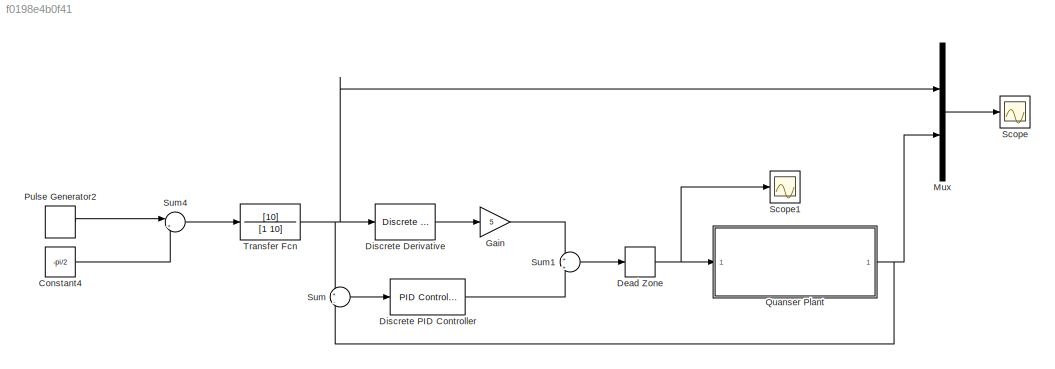
MODEL slx_f0198e4b0f41
KIND model
CONFIG AbsTol = auto
CONFIG EnableMultiTasking = off
CONFIG FixedStep = 0.05
CONFIG MaxStep = auto
CONFIG MinStep = auto
CONFIG RelTol = 1e-3
CONFIG SampleTimeConstraint = Unconstrained
CONFIG SolverName = FixedStepAuto
CONFIG StartTime = 0.0
CONFIG StopTime = inf
BLOCK [Constant] Constant4
  Value = -pi/2
BLOCK [DeadZone] Dead Zone
  LowerValue = -5
  UpperValue = 5
BLOCK [Reference] Discrete Derivative  REF=simulink/Discrete/Discrete Derivative
  SourceBlock = simulink/Discrete/Discrete Derivative
  SourceType = Discrete Derivative
BLOCK [Reference] Discrete PID Controller  REF=slpidlib/PID Controller
  LibrarySourceBlock = simulink/Discrete/Discrete PID Controller
  SourceBlock = slpidlib/PID Controller
  SourceType = PID 1dof
BLOCK [Gain] Gain
  Gain = 5
BLOCK [Mux] Mux
  DisplayOption = bar
  Inputs = 2
BLOCK [DiscretePulseGenerator] Pulse Generator2
  Amplitude = pi
  Period = 5
  PulseType = Time based
  PulseWidth = 50
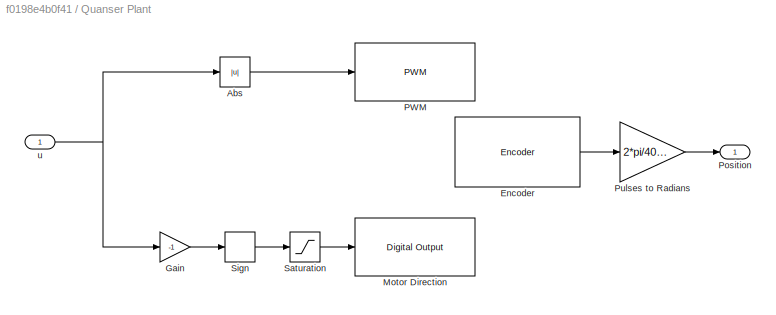
BLOCK [SubSystem] Quanser Plant
BLOCK [Abs] Quanser Plant/Abs
  SaturateOnIntegerOverflow = off
BLOCK [Reference] Quanser Plant/Encoder  REF=arduinosensorlib/Encoder
  SourceBlock = arduinosensorlib/Encoder
  SourceType = Arduino Rotary Encoder
BLOCK [Gain] Quanser Plant/Gain
  Gain = -1
BLOCK [Reference] Quanser Plant/Motor Direction  REF=arduinolib/Digital Output
  SourceBlock = arduinolib/Digital Output
  SourceType = Arduino Digital Output
BLOCK [Reference] Quanser Plant/PWM  REF=arduinolib/PWM
  SourceBlock = arduinolib/PWM
  SourceType = Arduino PWM
BLOCK [Outport] Quanser Plant/Position
BLOCK [Gain] Quanser Plant/Pulses to Radians
  Gain = 2*pi/4096
  OutDataTypeStr = double
BLOCK [Saturate] Quanser Plant/Saturation
  LowerLimit = 0
  UpperLimit = 1
BLOCK [Signum] Quanser Plant/Sign
BLOCK [Inport] Quanser Plant/u
BLOCK [Scope] Scope
  Floating = off
  NumInputPorts = 1
  ScopeSpecificationString = Simulink.scopes.TimeScopeBlockCfg('CurrentConfiguration', extmgr.ConfigurationSet(extmgr.Configuration('Core','General UI',true),extmgr.Configuration('Core','Source UI',true),extmgr.Configuration('Sources','WiredSimulink',true),extmgr.Configuration('Visuals','Time Domain',true,'SerializedDisplays',{struct('MinYLimReal','-1.9635','MaxYLimReal','1.9635','YLabelReal','','MinYLimMag','0.00000','MaxYLi...<+1416ch>
BLOCK [Scope] Scope1
  Floating = off
  NumInputPorts = 1
  ScopeSpecificationString = Simulink.scopes.TimeScopeBlockCfg('CurrentConfiguration', extmgr.ConfigurationSet(extmgr.Configuration('Core','General UI',true),extmgr.Configuration('Core','Source UI',true),extmgr.Configuration('Sources','WiredSimulink',true,'DataLoggingVariableName','ScopeData1'),extmgr.Configuration('Visuals','Time Domain',true,'SerializedDisplays',{struct('MinYLimReal','-1548.96368','MaxYLimReal','1545.58893'...<+1462ch>
BLOCK [Sum] Sum
  Inputs = +|-
BLOCK [Sum] Sum1
  Inputs = +|+
BLOCK [Sum] Sum4
  Inputs = |++
BLOCK [TransferFcn] Transfer Fcn
  Denominator = [1 10]
  Numerator = [10]
LINE Constant4:1 -> Sum4:2
NET Dead Zone:1 -> Quanser Plant:1, Scope1:1
LINE Discrete Derivative:1 -> Gain:1
LINE Discrete PID Controller:1 -> Sum1:2
LINE Gain:1 -> Sum1:1
LINE Mux:1 -> Scope:1
LINE Pulse Generator2:1 -> Sum4:1
LINE Quanser Plant/Abs:1 -> Quanser Plant/PWM:1
LINE Quanser Plant/Encoder:1 -> Quanser Plant/Pulses to Radians:1
LINE Quanser Plant/Gain:1 -> Quanser Plant/Sign:1
LINE Quanser Plant/Pulses to Radians:1 -> Quanser Plant/Position:1
LINE Quanser Plant/Saturation:1 -> Quanser Plant/Motor Direction:1
LINE Quanser Plant/Sign:1 -> Quanser Plant/Saturation:1
NET Quanser Plant/u:1 -> Quanser Plant/Abs:1, Quanser Plant/Gain:1
NET Quanser Plant:1 -> Mux:2, Sum:2
LINE Sum1:1 -> Dead Zone:1
LINE Sum4:1 -> Transfer Fcn:1
LINE Sum:1 -> Discrete PID Controller:1
NET Transfer Fcn:1 -> Discrete Derivative:1, Mux:1, Sum:1
note: NET lines group one-source signal fan-out (src -> all destinations, sorted); 1:1 wires keep LINE
